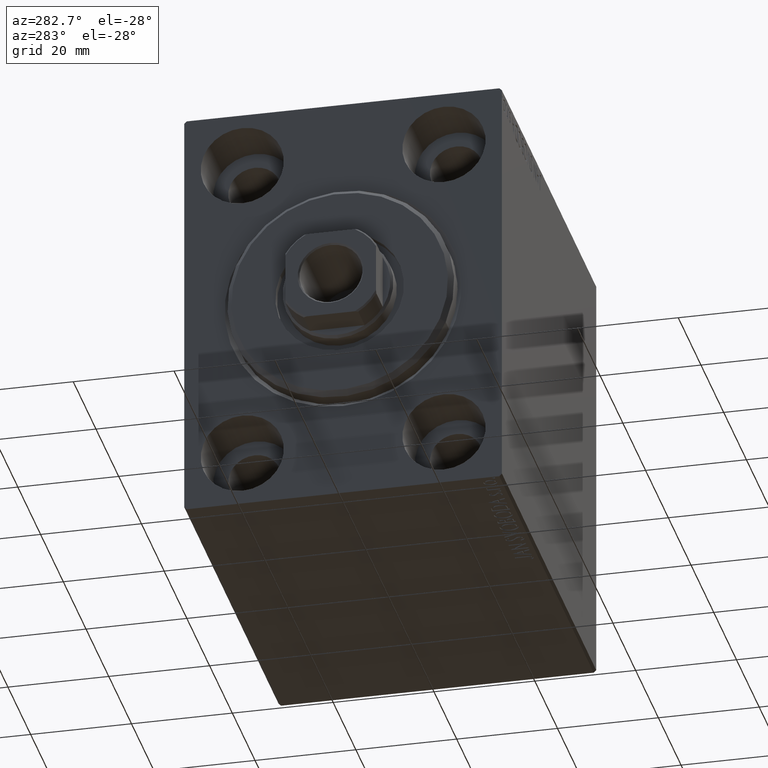
[diagram: clean part render]
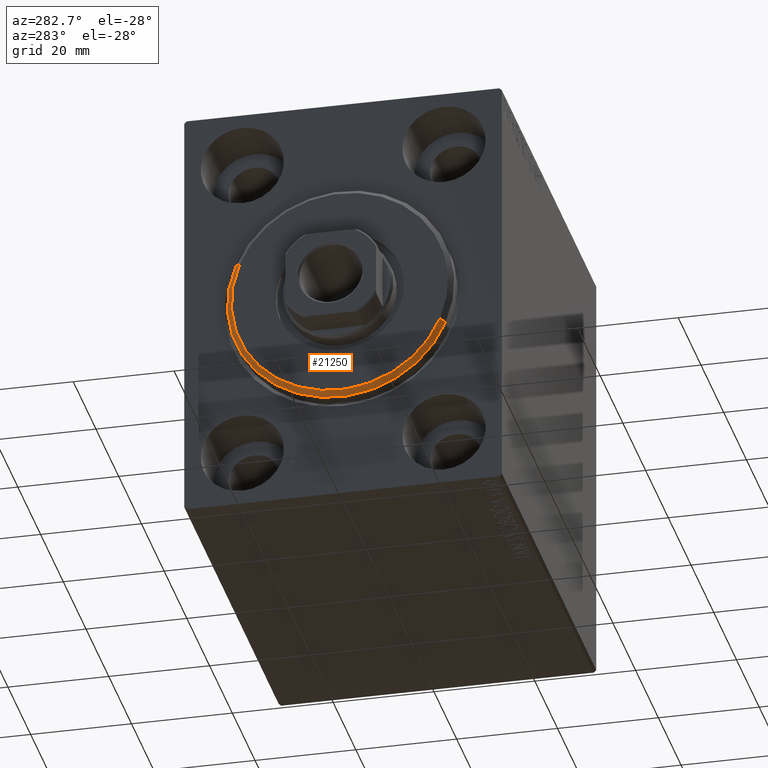
[diagram: same view with one face highlighted and labeled with its STEP entity id]
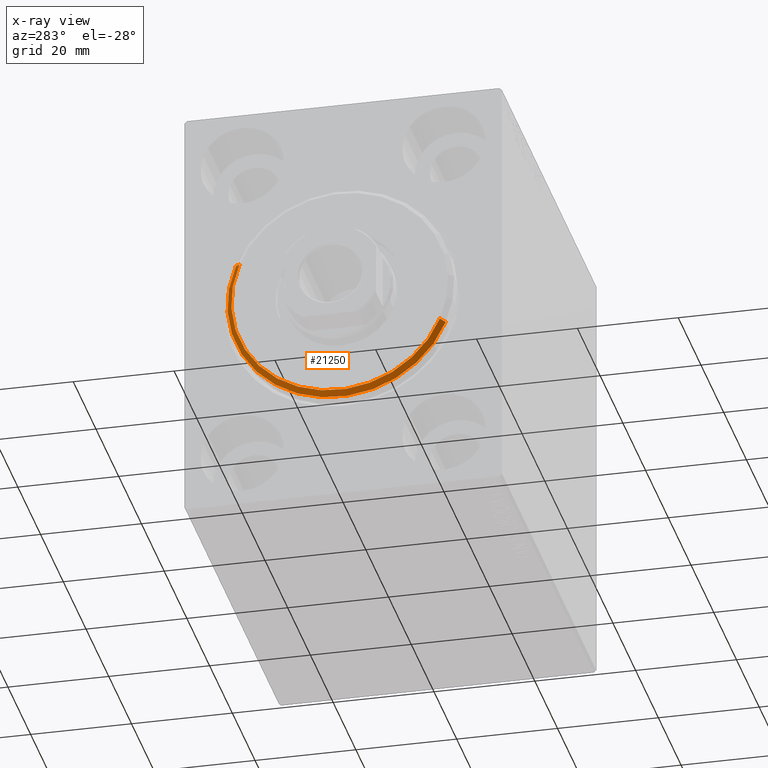
[diagram: x-ray of the same camera — body ghosted, the highlighted face saturated]
A machine part, auxiliary view. The second image highlights one B-rep face of the part: STEP entity #21250.
The next image is the same camera in x-ray: the body ghosted, the highlighted face saturated — about 0% of this face is hidden behind the body in this view.
In plain terms, the highlighted conical surface has half-angle 45 deg.
Its self-contained STEP definition (entity closure, byte-faithful):
#478 = VERTEX_POINT ( 'NONE', #41333 ) ;
#925 = EDGE_CURVE ( 'NONE', #478, #24882, #16046, .T. ) ;
#3003 = DIRECTION ( 'NONE',  ( -0.7071067811865512365, 8.659560562354888485E-17, -0.7071067811865439090 ) ) ;
#3336 = DIRECTION ( 'NONE',  ( 1.000000000000000000, -0.000000000000000000, 0.000000000000000000 ) ) ;
#5819 = ORIENTED_EDGE ( 'NONE', *, *, #7464, .F. ) ;
#7464 = EDGE_CURVE ( 'NONE', #24882, #24700, #10041, .T. ) ;
#9844 = CARTESIAN_POINT ( 'NONE',  ( 3.000000000000000000, 2.632990618166810024E-15, -21.50000000000000355 ) ) ;
#10041 = CIRCLE ( 'NONE', #34784, 22.50000000000000355 ) ;
#10062 = LINE ( 'NONE', #9844, #39072 ) ;
#10131 = EDGE_CURVE ( 'NONE', #18884, #24700, #10062, .T. ) ;
#11765 = CARTESIAN_POINT ( 'NONE',  ( 1.999999999999992228, 0.000000000000000000, 22.50000000000000355 ) ) ;
#11933 = FACE_OUTER_BOUND ( 'NONE', #25830, .T. ) ;
#12280 = DIRECTION ( 'NONE',  ( -0.7071067811865512365, 0.000000000000000000, 0.7071067811865439090 ) ) ;
#13497 = DIRECTION ( 'NONE',  ( 0.000000000000000000, 0.000000000000000000, -1.000000000000000000 ) ) ;
#15921 = CARTESIAN_POINT ( 'NONE',  ( 3.000000000000000000, 0.000000000000000000, 0.000000000000000000 ) ) ;
#16046 = LINE ( 'NONE', #29541, #26162 ) ;
#17332 = AXIS2_PLACEMENT_3D ( 'NONE', #15921, #29193, #22550 ) ;
#17887 = DIRECTION ( 'NONE',  ( -1.000000000000000000, 0.000000000000000000, 0.000000000000000000 ) ) ;
#18884 = VERTEX_POINT ( 'NONE', #30758 ) ;
#20518 = DIRECTION ( 'NONE',  ( 0.000000000000000000, 0.000000000000000000, -1.000000000000000000 ) ) ;
#21250 = ADVANCED_FACE ( 'NONE', ( #11933 ), #37135, .T. ) ;
#22550 = DIRECTION ( 'NONE',  ( 0.000000000000000000, 0.000000000000000000, 1.000000000000000000 ) ) ;
#24700 = VERTEX_POINT ( 'NONE', #41199 ) ;
#24882 = VERTEX_POINT ( 'NONE', #11765 ) ;
#25830 = EDGE_LOOP ( 'NONE', ( #27862, #32498, #5819, #34461 ) ) ;
#26162 = VECTOR ( 'NONE', #12280, 1000.000000000000000 ) ;
#27862 = ORIENTED_EDGE ( 'NONE', *, *, #40558, .F. ) ;
#29193 = DIRECTION ( 'NONE',  ( -1.000000000000000000, 0.000000000000000000, 0.000000000000000000 ) ) ;
#29541 = CARTESIAN_POINT ( 'NONE',  ( 3.000000000000000000, 0.000000000000000000, 21.50000000000000355 ) ) ;
#30758 = CARTESIAN_POINT ( 'NONE',  ( 3.000000000000000000, 2.694222958124177598E-15, -21.50000000000000355 ) ) ;
#32498 = ORIENTED_EDGE ( 'NONE', *, *, #10131, .T. ) ;
#33639 = CARTESIAN_POINT ( 'NONE',  ( 3.000000000000000000, 0.000000000000000000, 0.000000000000000000 ) ) ;
#34461 = ORIENTED_EDGE ( 'NONE', *, *, #925, .F. ) ;
#34784 = AXIS2_PLACEMENT_3D ( 'NONE', #37132, #17887, #20518 ) ;
#35339 = CIRCLE ( 'NONE', #36040, 21.50000000000000355 ) ;
#36040 = AXIS2_PLACEMENT_3D ( 'NONE', #33639, #3336, #13497 ) ;
#37132 = CARTESIAN_POINT ( 'NONE',  ( 1.999999999999992228, 0.000000000000000000, 0.000000000000000000 ) ) ;
#37135 = CONICAL_SURFACE ( 'NONE', #17332, 21.50000000000000355, 0.7853981633974431720 ) ;
#39072 = VECTOR ( 'NONE', #3003, 1000.000000000000000 ) ;
#40558 = EDGE_CURVE ( 'NONE', #18884, #478, #35339, .T. ) ;
#41199 = CARTESIAN_POINT ( 'NONE',  ( 1.999999999999992228, 2.755455298081545172E-15, -22.50000000000000355 ) ) ;
#41333 = CARTESIAN_POINT ( 'NONE',  ( 3.000000000000000000, 0.000000000000000000, 21.50000000000000355 ) ) ;